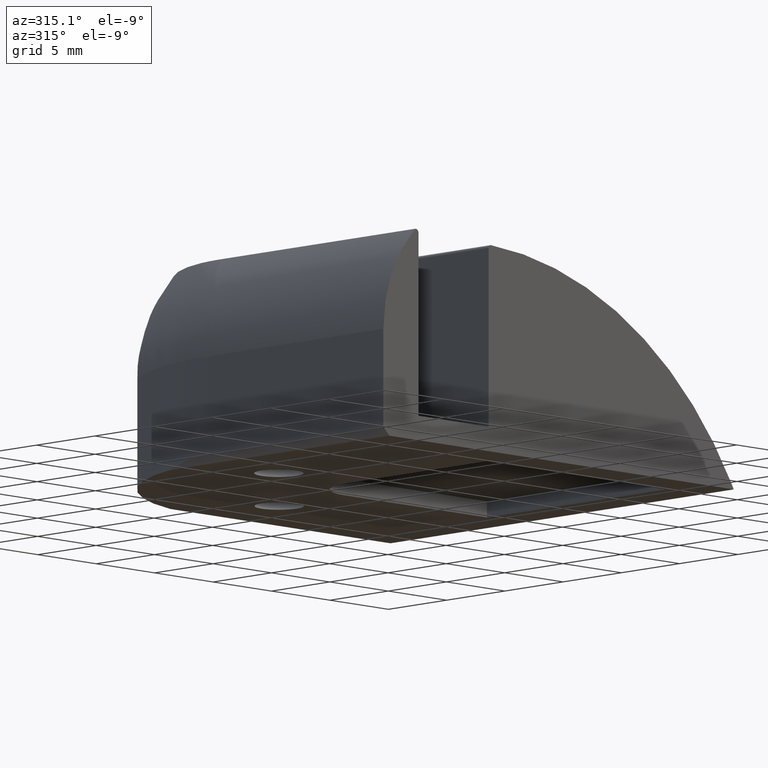
[diagram: clean part render]
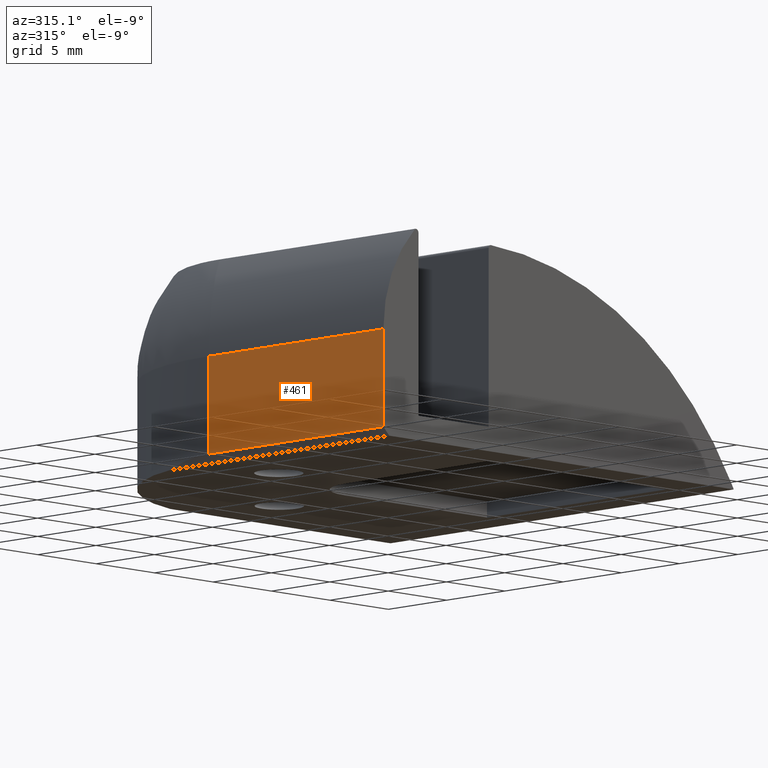
[diagram: same view with one face highlighted and labeled with its STEP entity id]
A machine part, auxiliary view. The second image highlights one B-rep face of the part: STEP entity #461.
In plain terms, the highlighted planar face has unit normal (1, 0, 0).
Its self-contained STEP definition (entity closure, byte-faithful):
#121=CARTESIAN_POINT('',(-29.979079826508382,0.303077244039855,0.196922255967024));
#122=VERTEX_POINT('',#121);
#123=CARTESIAN_POINT('',(-29.979079826508382,15.282157070544262,0.196922255960088));
#124=VERTEX_POINT('',#123);
#125=CARTESIAN_POINT('',(-29.979079826508382,0.303077244039855,0.196922255967024));
#126=DIRECTION('',(0.0,1.0,0.0));
#127=VECTOR('',#126,14.979079826504407);
#128=LINE('',#125,#127);
#129=EDGE_CURVE('',#122,#124,#128,.T.);
#189=CARTESIAN_POINT('',(-29.979079826508496,15.282157070544372,6.196916255939981));
#190=VERTEX_POINT('',#189);
#191=CARTESIAN_POINT('',(-29.979079826508496,15.282157070544372,6.196916255939981));
#192=DIRECTION('',(0.0,0.0,-1.0));
#193=VECTOR('',#192,5.999993999979893);
#194=LINE('',#191,#193);
#195=EDGE_CURVE('',#190,#124,#194,.T.);
#438=CARTESIAN_POINT('',(-29.979079826508496,0.303077244039855,6.196916255939982));
#439=DIRECTION('',(1.0,0.0,0.0));
#440=DIRECTION('',(0.0,0.0,-1.0));
#441=AXIS2_PLACEMENT_3D('',#438,#439,#440);
#442=PLANE('',#441);
#443=CARTESIAN_POINT('',(-29.979079826508496,0.303077244039855,6.196916255939982));
#444=VERTEX_POINT('',#443);
#445=CARTESIAN_POINT('',(-29.979079826508496,0.303077244039855,6.196916255939982));
#446=DIRECTION('',(0.0,1.0,0.0));
#447=VECTOR('',#446,14.979079826504517);
#448=LINE('',#445,#447);
#449=EDGE_CURVE('',#444,#190,#448,.T.);
#450=ORIENTED_EDGE('',*,*,#449,.T.);
#451=ORIENTED_EDGE('',*,*,#195,.T.);
#452=ORIENTED_EDGE('',*,*,#129,.F.);
#453=CARTESIAN_POINT('',(-29.979079826508496,0.303077244039855,6.196916255939982));
#454=DIRECTION('',(0.0,0.0,-1.0));
#455=VECTOR('',#454,5.999993999972958);
#456=LINE('',#453,#455);
#457=EDGE_CURVE('',#444,#122,#456,.T.);
#458=ORIENTED_EDGE('',*,*,#457,.F.);
#459=EDGE_LOOP('',(#450,#451,#452,#458));
#460=FACE_OUTER_BOUND('',#459,.T.);
#461=ADVANCED_FACE('',(#460),#442,.F.);